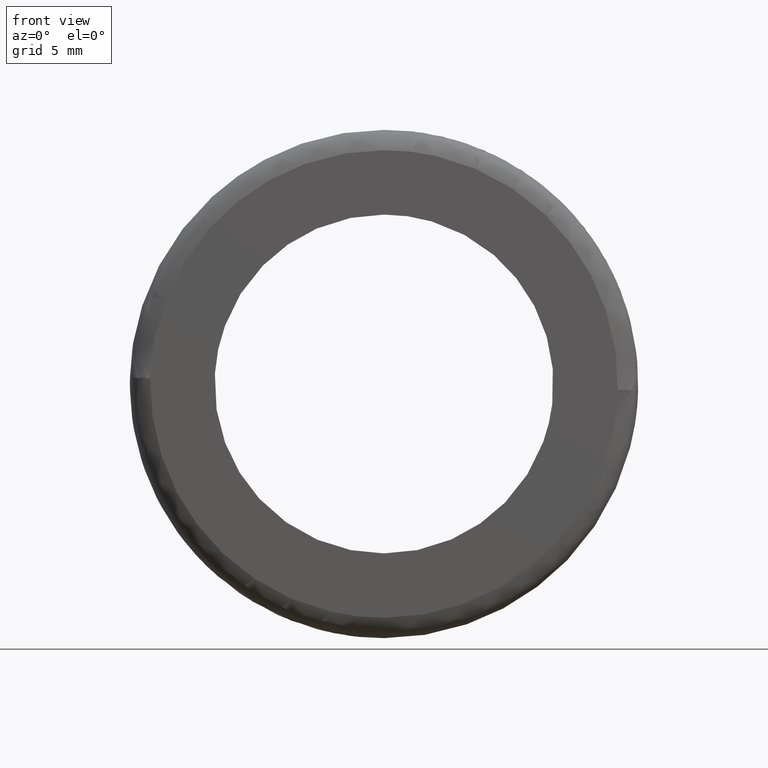
[diagram: clean part render]
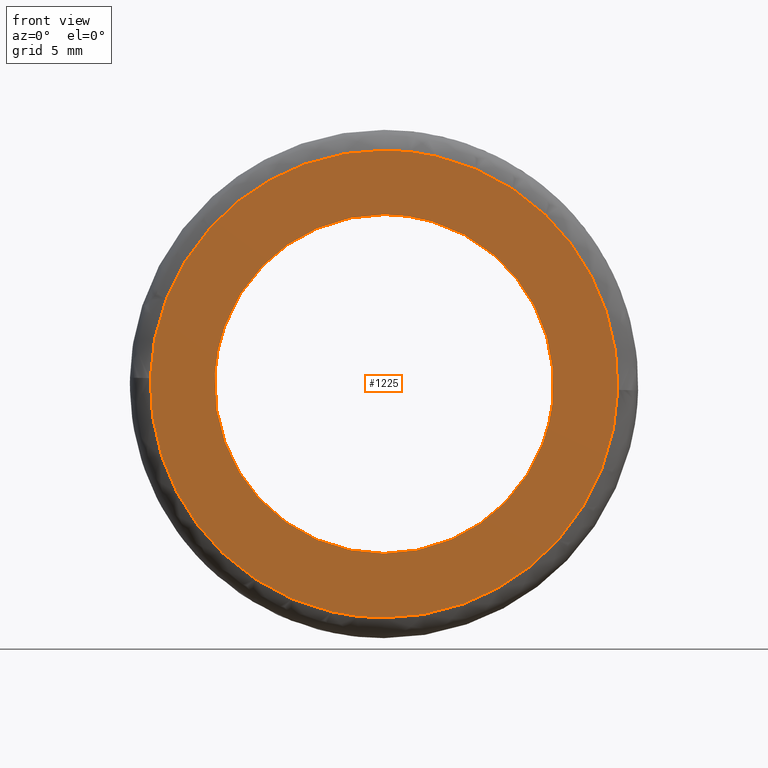
[diagram: same view with one face highlighted and labeled with its STEP entity id]
A machine part, front view. The second image highlights one B-rep face of the part: STEP entity #1225.
In plain terms, the highlighted face is a freeform B-spline surface patch.
Its self-contained STEP definition (entity closure, byte-faithful):
#703=CARTESIAN_POINT('',(9.930095809866085,-2.650506E-015,-1.180337751179104));
#704=VERTEX_POINT('',#703);
#710=CARTESIAN_POINT('',(0.0,-1.836910E-015,10.0));
#711=VERTEX_POINT('',#710);
#712=CARTESIAN_POINT('',(9.930095809866085,-2.650506E-015,-1.180337751179103));
#713=CARTESIAN_POINT('',(9.999999999999998,-1.836910E-015,-0.592238874534090));
#714=CARTESIAN_POINT('',(10.0,-1.836910E-015,-1.928755E-016));
#715=CARTESIAN_POINT('',(10.000000000000002,-1.836910E-015,10.000000000000002));
#716=CARTESIAN_POINT('',(0.0,-1.836910E-015,10.0));
#724=(BOUNDED_CURVE()B_SPLINE_CURVE(2,(#712,#713,#714,#715,#716),.UNSPECIFIED.,.F.,.U.)B_SPLINE_CURVE_WITH_KNOTS((3,2,3),(0.229562551725932,0.250000000000000,0.500000000000000),.UNSPECIFIED.)CURVE()GEOMETRIC_REPRESENTATION_ITEM()RATIONAL_B_SPLINE_CURVE((0.956026907483308,0.976056039962699,1.0,0.707106781186548,1.0))REPRESENTATION_ITEM(''));
#725=EDGE_CURVE('',#704,#711,#724,.T.);
#727=CARTESIAN_POINT('',(-9.981348738550697,-1.709489E-015,0.610473061878840));
#728=VERTEX_POINT('',#727);
#729=CARTESIAN_POINT('',(0.0,-1.836910E-015,10.0));
#730=CARTESIAN_POINT('',(-9.407072314634801,-1.836910E-015,10.0));
#731=CARTESIAN_POINT('',(-9.981348738550697,-1.709489E-015,0.610473061878840));
#739=(BOUNDED_CURVE()B_SPLINE_CURVE(2,(#729,#730,#731),.UNSPECIFIED.,.F.,.U.)B_SPLINE_CURVE_WITH_KNOTS((3,3),(0.500000000000000,0.739333175449739),.UNSPECIFIED.)CURVE()GEOMETRIC_REPRESENTATION_ITEM()RATIONAL_B_SPLINE_CURVE((1.0,0.719603743494725,0.976072498618465))REPRESENTATION_ITEM(''));
#740=EDGE_CURVE('',#711,#728,#739,.T.);
#814=CARTESIAN_POINT('',(0.0,-1.836910E-015,-10.0));
#815=VERTEX_POINT('',#814);
#816=CARTESIAN_POINT('',(-9.981348738550697,-1.709489E-015,0.610473061878840));
#817=CARTESIAN_POINT('',(-10.0,-1.836910E-015,0.305521448960682));
#818=CARTESIAN_POINT('',(-10.0,-1.836910E-015,-1.928755E-016));
#819=CARTESIAN_POINT('',(-10.000000000000002,-1.836910E-015,-10.000000000000002));
#820=CARTESIAN_POINT('',(0.0,-1.836910E-015,-10.0));
#828=(BOUNDED_CURVE()B_SPLINE_CURVE(2,(#816,#817,#818,#819,#820),.UNSPECIFIED.,.F.,.U.)B_SPLINE_CURVE_WITH_KNOTS((3,2,3),(0.739333175449739,0.750000000000000,1.0),.UNSPECIFIED.)CURVE()GEOMETRIC_REPRESENTATION_ITEM()RATIONAL_B_SPLINE_CURVE((0.976072498618465,0.987503037691822,1.0,0.707106781186548,1.0))REPRESENTATION_ITEM(''));
#829=EDGE_CURVE('',#728,#815,#828,.T.);
#831=CARTESIAN_POINT('',(0.0,-1.836910E-015,-10.0));
#832=CARTESIAN_POINT('',(8.881749398688593,-1.836910E-015,-9.999999999999998));
#833=CARTESIAN_POINT('',(9.930095809866085,-2.650506E-015,-1.180337751179103));
#841=(BOUNDED_CURVE()B_SPLINE_CURVE(2,(#831,#832,#833),.UNSPECIFIED.,.F.,.U.)B_SPLINE_CURVE_WITH_KNOTS((3,3),(0.0,0.229562551725932),.UNSPECIFIED.)CURVE()GEOMETRIC_REPRESENTATION_ITEM()RATIONAL_B_SPLINE_CURVE((1.0,0.731050741223848,0.956026907483308))REPRESENTATION_ITEM(''));
#842=EDGE_CURVE('',#815,#704,#841,.T.);
#1030=CARTESIAN_POINT('',(13.795641812970359,-1.001942E-015,-0.346795317177242));
#1031=VERTEX_POINT('',#1030);
#1045=CARTESIAN_POINT('',(0.0,-2.534935E-015,-13.800000000000001));
#1046=VERTEX_POINT('',#1045);
#1047=CARTESIAN_POINT('',(0.0,-2.534935E-015,-13.800000000000001));
#1048=CARTESIAN_POINT('',(13.457454691219727,-2.534935E-015,-13.799999999999999));
#1049=CARTESIAN_POINT('',(13.795641812970366,-1.001942E-015,-0.346795317177242));
#1057=(BOUNDED_CURVE()B_SPLINE_CURVE(2,(#1047,#1048,#1049),.UNSPECIFIED.,.F.,.U.)B_SPLINE_CURVE_WITH_KNOTS((3,3),(0.0,0.245579891768856),.UNSPECIFIED.)CURVE()GEOMETRIC_REPRESENTATION_ITEM()RATIONAL_B_SPLINE_CURVE((1.0,0.712285260095842,0.989826157679425))REPRESENTATION_ITEM(''));
#1058=EDGE_CURVE('',#1046,#1031,#1057,.T.);
#1060=CARTESIAN_POINT('',(-13.795641812970359,-1.033180E-015,0.346795317177241));
#1061=VERTEX_POINT('',#1060);
#1062=CARTESIAN_POINT('',(-13.795641812970363,-1.033180E-015,0.346795317177241));
#1063=CARTESIAN_POINT('',(-13.799999999999995,-2.534935E-015,0.173425043340176));
#1064=CARTESIAN_POINT('',(-13.800000000000001,-2.534935E-015,-1.928755E-016));
#1065=CARTESIAN_POINT('',(-13.799999999999999,-2.534935E-015,-13.799999999999999));
#1066=CARTESIAN_POINT('',(0.0,-2.534935E-015,-13.800000000000001));
#1074=(BOUNDED_CURVE()B_SPLINE_CURVE(2,(#1062,#1063,#1064,#1065,#1066),.UNSPECIFIED.,.F.,.U.)B_SPLINE_CURVE_WITH_KNOTS((3,2,3),(0.745579891768856,0.750000000000000,1.0),.UNSPECIFIED.)CURVE()GEOMETRIC_REPRESENTATION_ITEM()RATIONAL_B_SPLINE_CURVE((0.989826157679425,0.994821521090705,1.0,0.707106781186548,1.0))REPRESENTATION_ITEM(''));
#1075=EDGE_CURVE('',#1061,#1046,#1074,.T.);
#1119=CARTESIAN_POINT('',(0.0,-2.534935E-015,13.800000000000001));
#1120=VERTEX_POINT('',#1119);
#1121=CARTESIAN_POINT('',(0.0,-2.534935E-015,13.800000000000001));
#1122=CARTESIAN_POINT('',(-13.457454691219809,-2.534935E-015,13.799999999999999));
#1123=CARTESIAN_POINT('',(-13.795641812970365,-1.033180E-015,0.346795317177241));
#1131=(BOUNDED_CURVE()B_SPLINE_CURVE(2,(#1121,#1122,#1123),.UNSPECIFIED.,.F.,.U.)B_SPLINE_CURVE_WITH_KNOTS((3,3),(0.500000000000000,0.745579891768857),.UNSPECIFIED.)CURVE()GEOMETRIC_REPRESENTATION_ITEM()RATIONAL_B_SPLINE_CURVE((1.0,0.712285260095841,0.989826157679427))REPRESENTATION_ITEM(''));
#1132=EDGE_CURVE('',#1120,#1061,#1131,.T.);
#1134=CARTESIAN_POINT('',(13.795641812970366,-1.001942E-015,-0.346795317177242));
#1135=CARTESIAN_POINT('',(13.799999999999997,-2.534935E-015,-0.173425043340179));
#1136=CARTESIAN_POINT('',(13.800000000000001,-2.534935E-015,-1.928755E-016));
#1137=CARTESIAN_POINT('',(13.799999999999999,-2.534935E-015,13.799999999999999));
#1138=CARTESIAN_POINT('',(0.0,-2.534935E-015,13.800000000000001));
#1146=(BOUNDED_CURVE()B_SPLINE_CURVE(2,(#1134,#1135,#1136,#1137,#1138),.UNSPECIFIED.,.F.,.U.)B_SPLINE_CURVE_WITH_KNOTS((3,2,3),(0.245579891768856,0.250000000000000,0.500000000000000),.UNSPECIFIED.)CURVE()GEOMETRIC_REPRESENTATION_ITEM()RATIONAL_B_SPLINE_CURVE((0.989826157679425,0.994821521090705,1.0,0.707106781186548,1.0))REPRESENTATION_ITEM(''));
#1147=EDGE_CURVE('',#1031,#1120,#1146,.T.);
#1208=CARTESIAN_POINT('',(-15.173826635616070,-2.185922E-015,-15.178620205594900));
#1209=CARTESIAN_POINT('',(-15.173826635616070,-2.185922E-015,15.178620699121360));
#1210=CARTESIAN_POINT('',(15.173827128986661,-2.185922E-015,-15.178620205594900));
#1211=CARTESIAN_POINT('',(15.173827128986661,-2.185922E-015,15.178620699121360));
#1212=B_SPLINE_SURFACE_WITH_KNOTS('',1,1,((#1208,#1210),(#1209,#1211)),.UNSPECIFIED.,.F.,.F.,.U.,(2,2),(2,2),(0.0,30.357240904716249),(0.0,30.347653764602740),.UNSPECIFIED.);
#1213=ORIENTED_EDGE('',*,*,#1058,.T.);
#1214=ORIENTED_EDGE('',*,*,#1147,.T.);
#1215=ORIENTED_EDGE('',*,*,#1132,.T.);
#1216=ORIENTED_EDGE('',*,*,#1075,.T.);
#1217=EDGE_LOOP('',(#1213,#1214,#1215,#1216));
#1218=FACE_OUTER_BOUND('',#1217,.T.);
#1219=ORIENTED_EDGE('',*,*,#740,.F.);
#1220=ORIENTED_EDGE('',*,*,#725,.F.);
#1221=ORIENTED_EDGE('',*,*,#842,.F.);
#1222=ORIENTED_EDGE('',*,*,#829,.F.);
#1223=EDGE_LOOP('',(#1219,#1220,#1221,#1222));
#1224=FACE_BOUND('',#1223,.T.);
#1225=ADVANCED_FACE('',(#1218,#1224),#1212,.F.);